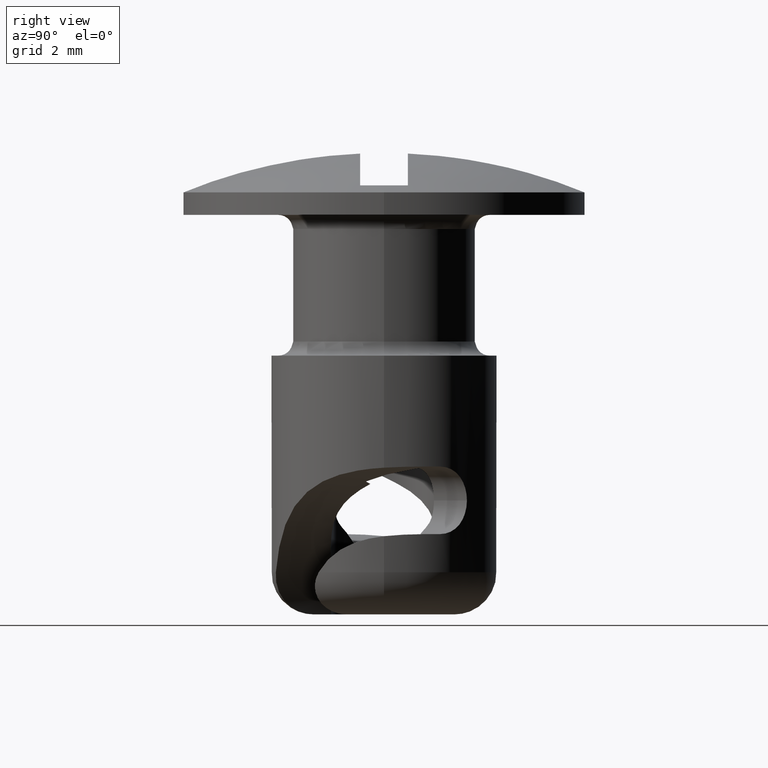
[diagram: clean part render]
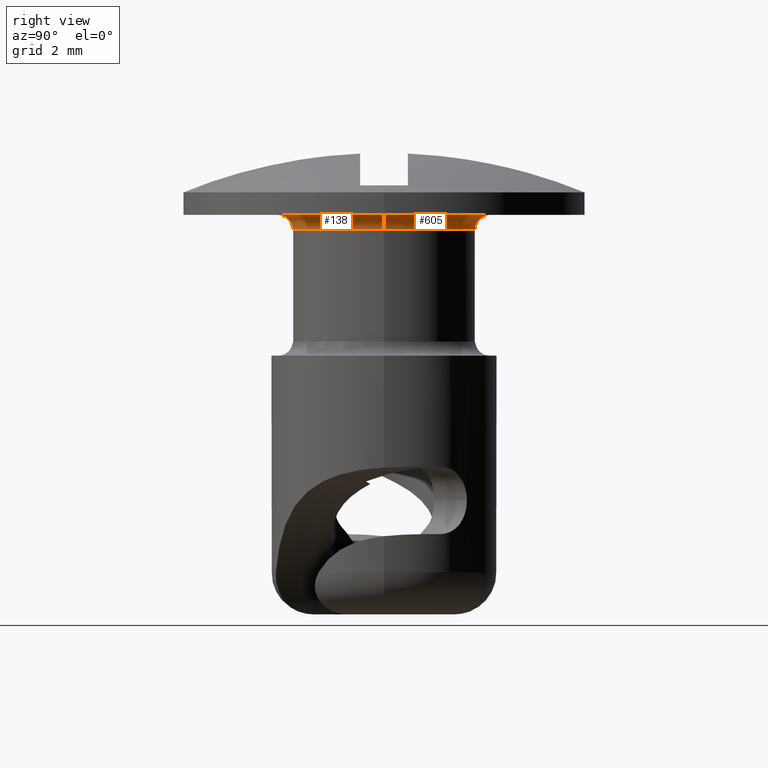
[diagram: same view with one multi-face feature highlighted, each face labeled with its STEP entity id]
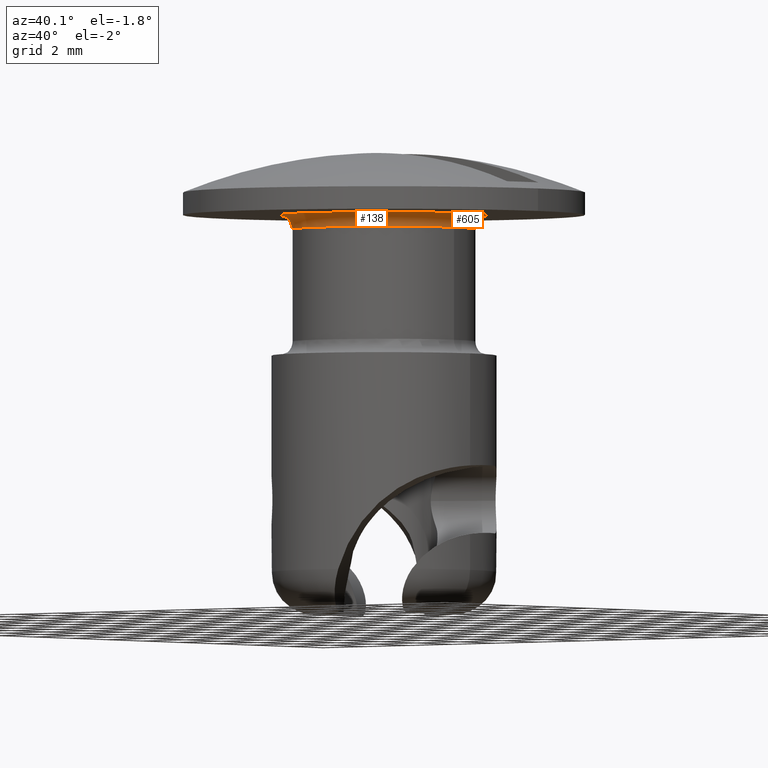
[diagram: same view with one multi-face feature highlighted, each face labeled with its STEP entity id]
A machine part, right view. The highlighted faces form ONE feature: a constant-radius fillet chain: 2 tangent blend faces with common blend radius 0.5 mm. The faces share edges in the B-rep.
A second angle (auxiliary view) of the same feature is appended — it is thin or edge-on in the first view.
Their STEP definitions:
[1] entity #605 (Torus):
#18 = CARTESIAN_POINT ( 'NONE',  ( -3.750000000000044900, 4.592425496802630200E-016, 9.644069000000000000 ) ) ;
#228 = AXIS2_PLACEMENT_3D ( 'NONE', #18, #1503, #234 ) ;
#234 = DIRECTION ( 'NONE',  ( -1.000000000000000000, 1.224646799147351500E-016, 0.0000000000000000000 ) ) ;
#255 = VERTEX_POINT ( 'NONE', #1986 ) ;
#276 = FACE_OUTER_BOUND ( 'NONE', #408, .T. ) ;
#287 = ORIENTED_EDGE ( 'NONE', *, *, #820, .F. ) ;
#408 = EDGE_LOOP ( 'NONE', ( #1954, #1430, #857, #287 ) ) ;
#449 = CARTESIAN_POINT ( 'NONE',  ( 3.750000000000044900, 0.0000000000000000000, 9.644069000000000000 ) ) ;
#500 = CIRCLE ( 'NONE', #2413, 3.250000000000044900 ) ;
#605 = ADVANCED_FACE ( 'NONE', ( #276 ), #1892, .F. ) ;
#657 = DIRECTION ( 'NONE',  ( -0.0000000000000000000, -0.0000000000000000000, -1.000000000000000000 ) ) ;
#665 = DIRECTION ( 'NONE',  ( 0.0000000000000000000, 0.0000000000000000000, -1.000000000000000000 ) ) ;
#820 = EDGE_CURVE ( 'NONE', #255, #2137, #500, .T. ) ;
#857 = ORIENTED_EDGE ( 'NONE', *, *, #1993, .T. ) ;
#989 = AXIS2_PLACEMENT_3D ( 'NONE', #1912, #657, #2110 ) ;
#1011 = CIRCLE ( 'NONE', #1284, 0.5000000000000004400 ) ;
#1069 = CARTESIAN_POINT ( 'NONE',  ( 0.0000000000000000000, 0.0000000000000000000, 9.644069000000000000 ) ) ;
#1159 = CARTESIAN_POINT ( 'NONE',  ( 0.0000000000000000000, 0.0000000000000000000, 9.644069000000000000 ) ) ;
#1180 = DIRECTION ( 'NONE',  ( 0.0000000000000000000, 0.0000000000000000000, 1.000000000000000000 ) ) ;
#1254 = CIRCLE ( 'NONE', #228, 0.5000000000000004400 ) ;
#1284 = AXIS2_PLACEMENT_3D ( 'NONE', #449, #1920, #665 ) ;
#1323 = AXIS2_PLACEMENT_3D ( 'NONE', #1159, #1180, #1498 ) ;
#1430 = ORIENTED_EDGE ( 'NONE', *, *, #1939, .T. ) ;
#1498 = DIRECTION ( 'NONE',  ( 1.000000000000000000, 0.0000000000000000000, 0.0000000000000000000 ) ) ;
#1502 = DIRECTION ( 'NONE',  ( -0.0000000000000000000, -0.0000000000000000000, -1.000000000000000000 ) ) ;
#1503 = DIRECTION ( 'NONE',  ( 1.224646799147353200E-016, 1.000000000000000000, -0.0000000000000000000 ) ) ;
#1569 = CIRCLE ( 'NONE', #989, 3.750000000000044900 ) ;
#1625 = CARTESIAN_POINT ( 'NONE',  ( 3.750000000000044900, 0.0000000000000000000, 10.14406900000000000 ) ) ;
#1732 = DIRECTION ( 'NONE',  ( 1.000000000000000000, 0.0000000000000000000, 0.0000000000000000000 ) ) ;
#1892 = TOROIDAL_SURFACE ( 'NONE', #1323, 3.750000000000044900, 0.5000000000000000000 ) ;
#1912 = CARTESIAN_POINT ( 'NONE',  ( 0.0000000000000000000, 0.0000000000000000000, 10.14406900000000000 ) ) ;
#1920 = DIRECTION ( 'NONE',  ( 0.0000000000000000000, -1.000000000000000000, 0.0000000000000000000 ) ) ;
#1939 = EDGE_CURVE ( 'NONE', #2213, #2336, #1569, .T. ) ;
#1954 = ORIENTED_EDGE ( 'NONE', *, *, #2583, .F. ) ;
#1986 = CARTESIAN_POINT ( 'NONE',  ( -3.250000000000044900, 0.0000000000000000000, 9.644069000000000000 ) ) ;
#1993 = EDGE_CURVE ( 'NONE', #2336, #2137, #1011, .T. ) ;
#2110 = DIRECTION ( 'NONE',  ( 1.000000000000000000, 0.0000000000000000000, 0.0000000000000000000 ) ) ;
#2137 = VERTEX_POINT ( 'NONE', #2352 ) ;
#2213 = VERTEX_POINT ( 'NONE', #2575 ) ;
#2336 = VERTEX_POINT ( 'NONE', #1625 ) ;
#2352 = CARTESIAN_POINT ( 'NONE',  ( 3.250000000000044900, 3.980102097228953000E-016, 9.644069000000000000 ) ) ;
#2413 = AXIS2_PLACEMENT_3D ( 'NONE', #1069, #1502, #1732 ) ;
#2575 = CARTESIAN_POINT ( 'NONE',  ( -3.750000000000044900, 4.592425496802630200E-016, 10.14406900000000000 ) ) ;
#2583 = EDGE_CURVE ( 'NONE', #2213, #255, #1254, .T. ) ;
[2] entity #138 (Torus):
#18 = CARTESIAN_POINT ( 'NONE',  ( -3.750000000000044900, 4.592425496802630200E-016, 9.644069000000000000 ) ) ;
#138 = ADVANCED_FACE ( 'NONE', ( #207 ), #1796, .F. ) ;
#207 = FACE_OUTER_BOUND ( 'NONE', #2446, .T. ) ;
#228 = AXIS2_PLACEMENT_3D ( 'NONE', #18, #1503, #234 ) ;
#234 = DIRECTION ( 'NONE',  ( -1.000000000000000000, 1.224646799147351500E-016, 0.0000000000000000000 ) ) ;
#255 = VERTEX_POINT ( 'NONE', #1986 ) ;
#376 = AXIS2_PLACEMENT_3D ( 'NONE', #1192, #2617, #1408 ) ;
#393 = CIRCLE ( 'NONE', #1112, 3.250000000000044900 ) ;
#449 = CARTESIAN_POINT ( 'NONE',  ( 3.750000000000044900, 0.0000000000000000000, 9.644069000000000000 ) ) ;
#516 = ORIENTED_EDGE ( 'NONE', *, *, #1993, .F. ) ;
#665 = DIRECTION ( 'NONE',  ( 0.0000000000000000000, 0.0000000000000000000, -1.000000000000000000 ) ) ;
#973 = DIRECTION ( 'NONE',  ( 0.0000000000000000000, 0.0000000000000000000, 1.000000000000000000 ) ) ;
#1011 = CIRCLE ( 'NONE', #1284, 0.5000000000000004400 ) ;
#1037 = EDGE_CURVE ( 'NONE', #2137, #255, #393, .T. ) ;
#1112 = AXIS2_PLACEMENT_3D ( 'NONE', #1347, #2550, #1121 ) ;
#1121 = DIRECTION ( 'NONE',  ( 1.000000000000000000, 0.0000000000000000000, 0.0000000000000000000 ) ) ;
#1173 = CIRCLE ( 'NONE', #376, 3.750000000000044900 ) ;
#1192 = CARTESIAN_POINT ( 'NONE',  ( 0.0000000000000000000, 0.0000000000000000000, 10.14406900000000000 ) ) ;
#1226 = AXIS2_PLACEMENT_3D ( 'NONE', #1635, #973, #1597 ) ;
#1254 = CIRCLE ( 'NONE', #228, 0.5000000000000004400 ) ;
#1284 = AXIS2_PLACEMENT_3D ( 'NONE', #449, #1920, #665 ) ;
#1347 = CARTESIAN_POINT ( 'NONE',  ( 0.0000000000000000000, 0.0000000000000000000, 9.644069000000000000 ) ) ;
#1394 = ORIENTED_EDGE ( 'NONE', *, *, #2583, .T. ) ;
#1408 = DIRECTION ( 'NONE',  ( 1.000000000000000000, 0.0000000000000000000, 0.0000000000000000000 ) ) ;
#1503 = DIRECTION ( 'NONE',  ( 1.224646799147353200E-016, 1.000000000000000000, -0.0000000000000000000 ) ) ;
#1597 = DIRECTION ( 'NONE',  ( 1.000000000000000000, 0.0000000000000000000, 0.0000000000000000000 ) ) ;
#1625 = CARTESIAN_POINT ( 'NONE',  ( 3.750000000000044900, 0.0000000000000000000, 10.14406900000000000 ) ) ;
#1635 = CARTESIAN_POINT ( 'NONE',  ( 0.0000000000000000000, 0.0000000000000000000, 9.644069000000000000 ) ) ;
#1796 = TOROIDAL_SURFACE ( 'NONE', #1226, 3.750000000000044900, 0.5000000000000000000 ) ;
#1920 = DIRECTION ( 'NONE',  ( 0.0000000000000000000, -1.000000000000000000, 0.0000000000000000000 ) ) ;
#1986 = CARTESIAN_POINT ( 'NONE',  ( -3.250000000000044900, 0.0000000000000000000, 9.644069000000000000 ) ) ;
#1993 = EDGE_CURVE ( 'NONE', #2336, #2137, #1011, .T. ) ;
#2137 = VERTEX_POINT ( 'NONE', #2352 ) ;
#2179 = ORIENTED_EDGE ( 'NONE', *, *, #2654, .T. ) ;
#2213 = VERTEX_POINT ( 'NONE', #2575 ) ;
#2336 = VERTEX_POINT ( 'NONE', #1625 ) ;
#2352 = CARTESIAN_POINT ( 'NONE',  ( 3.250000000000044900, 3.980102097228953000E-016, 9.644069000000000000 ) ) ;
#2408 = ORIENTED_EDGE ( 'NONE', *, *, #1037, .F. ) ;
#2446 = EDGE_LOOP ( 'NONE', ( #2179, #1394, #2408, #516 ) ) ;
#2550 = DIRECTION ( 'NONE',  ( -0.0000000000000000000, -0.0000000000000000000, -1.000000000000000000 ) ) ;
#2575 = CARTESIAN_POINT ( 'NONE',  ( -3.750000000000044900, 4.592425496802630200E-016, 10.14406900000000000 ) ) ;
#2583 = EDGE_CURVE ( 'NONE', #2213, #255, #1254, .T. ) ;
#2617 = DIRECTION ( 'NONE',  ( -0.0000000000000000000, -0.0000000000000000000, -1.000000000000000000 ) ) ;
#2654 = EDGE_CURVE ( 'NONE', #2336, #2213, #1173, .T. ) ;